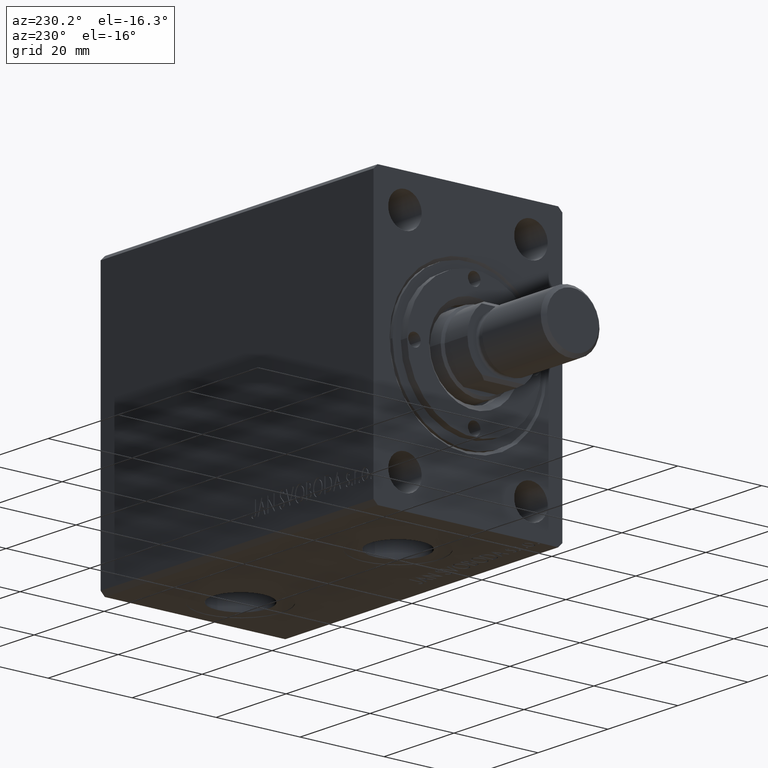
[diagram: clean part render]
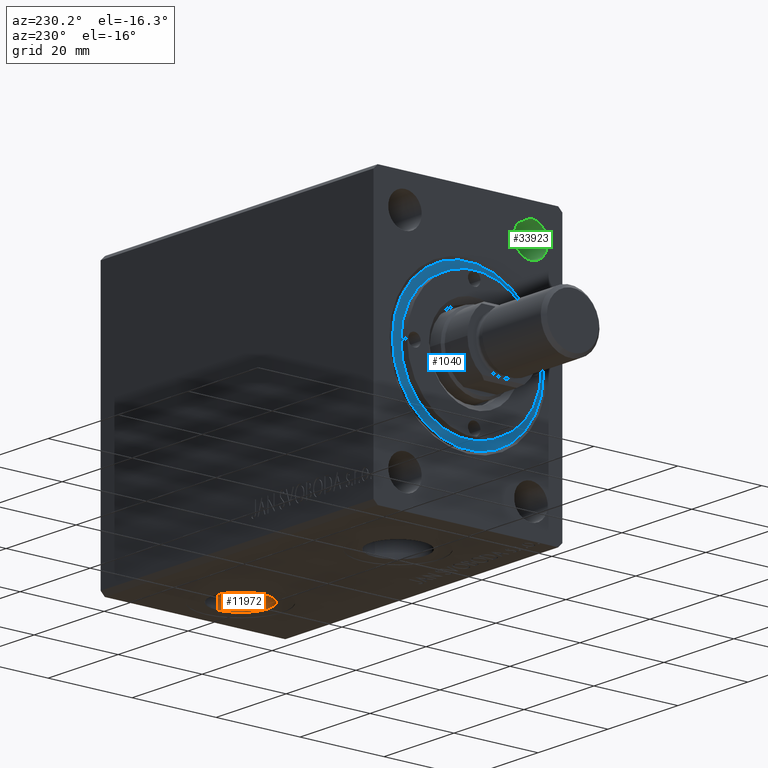
[diagram: same view with three faces highlighted in distinct colors, each labeled with its STEP entity id]
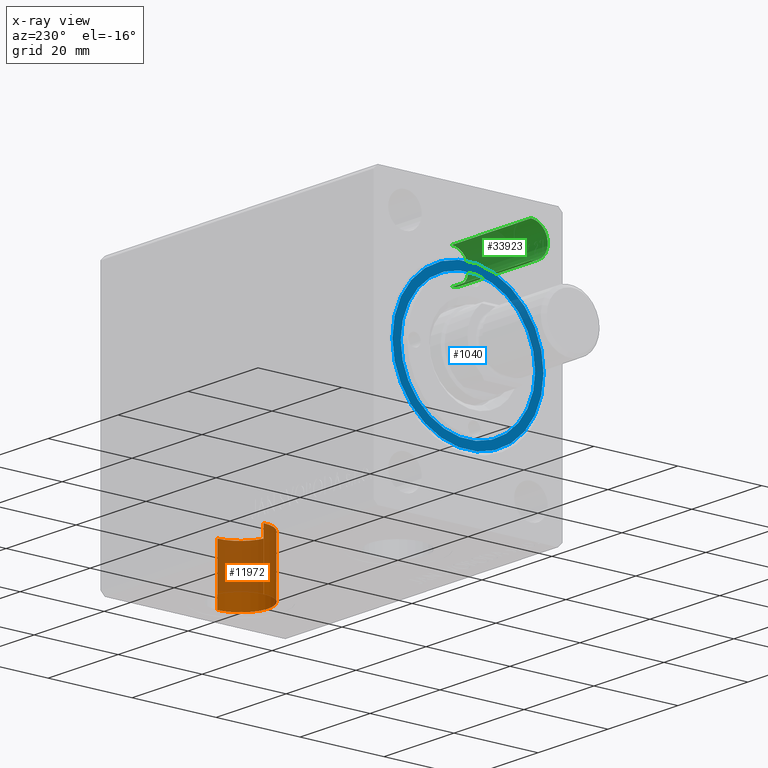
[diagram: x-ray of the same camera — body ghosted, the three highlighted faces saturated]
A machine part, auxiliary view with three faces highlighted in distinct colors.
The next image is the same camera in x-ray (body ghosted, the three faces saturated) — at least one of them is partly hidden behind the body in this view.
Their STEP definitions:

[orange] entity #11972 — the highlighted cylindrical surface (edge-blend (fillet) strip) has radius 6.58 mm, axis along (-0, -0, -1).
#3132 = DIRECTION ( 'NONE',  ( -1.000000000000000000, 0.000000000000000000, 0.000000000000000000 ) ) ;
#6210 = AXIS2_PLACEMENT_3D ( 'NONE', #23789, #6719, #3132 ) ;
#6719 = DIRECTION ( 'NONE',  ( 0.000000000000000000, 0.000000000000000000, -1.000000000000000000 ) ) ;
#7118 = ORIENTED_EDGE ( 'NONE', *, *, #13020, .F. ) ;
#8513 = CIRCLE ( 'NONE', #32853, 6.580000000000002736 ) ;
#8901 = VECTOR ( 'NONE', #19192, 1000.000000000000000 ) ;
#11668 = AXIS2_PLACEMENT_3D ( 'NONE', #40869, #26925, #40644 ) ;
#11972 = ADVANCED_FACE ( 'NONE', ( #44006 ), #13241, .F. ) ;
#12168 = CARTESIAN_POINT ( 'NONE',  ( 71.57999999999999829, -2.126334039427193546E-15, -32.39999999999999858 ) ) ;
#12591 = ORIENTED_EDGE ( 'NONE', *, *, #34863, .F. ) ;
#12693 = CARTESIAN_POINT ( 'NONE',  ( 71.57999999999999829, -2.126334039427193546E-15, -18.79999999999999716 ) ) ;
#13020 = EDGE_CURVE ( 'NONE', #34846, #21326, #14729, .T. ) ;
#13241 = CYLINDRICAL_SURFACE ( 'NONE', #11668, 6.580000000000002736 ) ;
#14729 = LINE ( 'NONE', #39428, #30934 ) ;
#15816 = DIRECTION ( 'NONE',  ( 0.000000000000000000, 0.000000000000000000, -1.000000000000000000 ) ) ;
#16220 = ORIENTED_EDGE ( 'NONE', *, *, #17683, .T. ) ;
#17683 = EDGE_CURVE ( 'NONE', #41756, #21326, #8513, .T. ) ;
#19192 = DIRECTION ( 'NONE',  ( -0.000000000000000000, -0.000000000000000000, -1.000000000000000000 ) ) ;
#21326 = VERTEX_POINT ( 'NONE', #21483 ) ;
#21483 = CARTESIAN_POINT ( 'NONE',  ( 58.42000000000000171, -2.932151633266152588E-15, -32.39999999999999858 ) ) ;
#22343 = LINE ( 'NONE', #12693, #8901 ) ;
#22351 = DIRECTION ( 'NONE',  ( -0.000000000000000000, -0.000000000000000000, -1.000000000000000000 ) ) ;
#23788 = EDGE_CURVE ( 'NONE', #40928, #41756, #22343, .T. ) ;
#23789 = CARTESIAN_POINT ( 'NONE',  ( 65.00000000000000000, -2.932151633266152588E-15, -18.79999999999999716 ) ) ;
#26921 = CARTESIAN_POINT ( 'NONE',  ( 58.42000000000000171, -2.932151633266152588E-15, -18.79999999999999716 ) ) ;
#26925 = DIRECTION ( 'NONE',  ( -0.000000000000000000, -0.000000000000000000, -1.000000000000000000 ) ) ;
#29281 = DIRECTION ( 'NONE',  ( -1.000000000000000000, 0.000000000000000000, 0.000000000000000000 ) ) ;
#29597 = EDGE_LOOP ( 'NONE', ( #12591, #39524, #16220, #7118 ) ) ;
#30078 = CARTESIAN_POINT ( 'NONE',  ( 71.57999999999999829, -2.126334039427193546E-15, -18.79999999999999716 ) ) ;
#30934 = VECTOR ( 'NONE', #22351, 1000.000000000000000 ) ;
#32853 = AXIS2_PLACEMENT_3D ( 'NONE', #42782, #15816, #29281 ) ;
#34846 = VERTEX_POINT ( 'NONE', #26921 ) ;
#34863 = EDGE_CURVE ( 'NONE', #40928, #34846, #36321, .T. ) ;
#36321 = CIRCLE ( 'NONE', #6210, 6.580000000000002736 ) ;
#39428 = CARTESIAN_POINT ( 'NONE',  ( 58.42000000000000171, -2.932151633266152588E-15, -18.79999999999999716 ) ) ;
#39524 = ORIENTED_EDGE ( 'NONE', *, *, #23788, .T. ) ;
#40644 = DIRECTION ( 'NONE',  ( -1.000000000000000000, 0.000000000000000000, 0.000000000000000000 ) ) ;
#40869 = CARTESIAN_POINT ( 'NONE',  ( 65.00000000000000000, -2.932151633266152588E-15, -18.79999999999999716 ) ) ;
#40928 = VERTEX_POINT ( 'NONE', #30078 ) ;
#41756 = VERTEX_POINT ( 'NONE', #12168 ) ;
#42782 = CARTESIAN_POINT ( 'NONE',  ( 65.00000000000000000, -2.932151633266152588E-15, -32.39999999999999858 ) ) ;
#44006 = FACE_OUTER_BOUND ( 'NONE', #29597, .T. ) ;

[blue] entity #1040 — the highlighted planar face has unit normal (-1, 0, 0).
#276 = CIRCLE ( 'NONE', #28242, 18.00000000000000000 ) ;
#468 = ORIENTED_EDGE ( 'NONE', *, *, #34655, .T. ) ;
#995 = CARTESIAN_POINT ( 'NONE',  ( 0.000000000000000000, 0.000000000000000000, 10.00000000000000000 ) ) ;
#1040 = ADVANCED_FACE ( 'NONE', ( #41827, #34639 ), #31484, .T. ) ;
#1641 = EDGE_LOOP ( 'NONE', ( #29463, #23432 ) ) ;
#7243 = VERTEX_POINT ( 'NONE', #30055 ) ;
#7927 = DIRECTION ( 'NONE',  ( 1.000000000000000000, 0.000000000000000000, -0.000000000000000000 ) ) ;
#8173 = DIRECTION ( 'NONE',  ( 0.000000000000000000, 0.000000000000000000, 1.000000000000000000 ) ) ;
#11963 = CIRCLE ( 'NONE', #28437, 18.00000000000000000 ) ;
#13800 = ORIENTED_EDGE ( 'NONE', *, *, #23670, .T. ) ;
#14648 = DIRECTION ( 'NONE',  ( 0.000000000000000000, 0.000000000000000000, 1.000000000000000000 ) ) ;
#15788 = CARTESIAN_POINT ( 'NONE',  ( 16.00000000000000000, 1.959434878635765131E-15, 10.00000000000000000 ) ) ;
#16881 = DIRECTION ( 'NONE',  ( 1.000000000000000000, 0.000000000000000000, 0.000000000000000000 ) ) ;
#18027 = CARTESIAN_POINT ( 'NONE',  ( 0.000000000000000000, 0.000000000000000000, 10.00000000000000000 ) ) ;
#18533 = DIRECTION ( 'NONE',  ( 1.000000000000000000, 0.000000000000000000, 0.000000000000000000 ) ) ;
#20251 = EDGE_LOOP ( 'NONE', ( #13800, #468 ) ) ;
#20726 = DIRECTION ( 'NONE',  ( 1.000000000000000000, 0.000000000000000000, 0.000000000000000000 ) ) ;
#20864 = VERTEX_POINT ( 'NONE', #39987 ) ;
#21074 = AXIS2_PLACEMENT_3D ( 'NONE', #31038, #37571, #20726 ) ;
#22038 = CIRCLE ( 'NONE', #36389, 16.00000000000000000 ) ;
#22594 = EDGE_CURVE ( 'NONE', #7243, #36726, #25181, .T. ) ;
#23432 = ORIENTED_EDGE ( 'NONE', *, *, #36587, .F. ) ;
#23670 = EDGE_CURVE ( 'NONE', #30448, #20864, #276, .T. ) ;
#25181 = CIRCLE ( 'NONE', #21074, 16.00000000000000000 ) ;
#25263 = CARTESIAN_POINT ( 'NONE',  ( 0.000000000000000000, 0.000000000000000000, 10.00000000000000000 ) ) ;
#27417 = DIRECTION ( 'NONE',  ( 0.000000000000000000, 0.000000000000000000, 1.000000000000000000 ) ) ;
#27769 = CARTESIAN_POINT ( 'NONE',  ( -18.00000000000000000, 0.000000000000000000, 10.00000000000000000 ) ) ;
#28242 = AXIS2_PLACEMENT_3D ( 'NONE', #25263, #31774, #18533 ) ;
#28373 = DIRECTION ( 'NONE',  ( 1.000000000000000000, 0.000000000000000000, 0.000000000000000000 ) ) ;
#28437 = AXIS2_PLACEMENT_3D ( 'NONE', #43843, #27417, #16881 ) ;
#29463 = ORIENTED_EDGE ( 'NONE', *, *, #22594, .F. ) ;
#30055 = CARTESIAN_POINT ( 'NONE',  ( -16.00000000000000000, 0.000000000000000000, 10.00000000000000000 ) ) ;
#30448 = VERTEX_POINT ( 'NONE', #27769 ) ;
#31038 = CARTESIAN_POINT ( 'NONE',  ( 0.000000000000000000, 0.000000000000000000, 10.00000000000000000 ) ) ;
#31484 = PLANE ( 'NONE',  #31540 ) ;
#31540 = AXIS2_PLACEMENT_3D ( 'NONE', #18027, #14648, #7927 ) ;
#31774 = DIRECTION ( 'NONE',  ( 0.000000000000000000, 0.000000000000000000, 1.000000000000000000 ) ) ;
#34639 = FACE_OUTER_BOUND ( 'NONE', #20251, .T. ) ;
#34655 = EDGE_CURVE ( 'NONE', #20864, #30448, #11963, .T. ) ;
#36389 = AXIS2_PLACEMENT_3D ( 'NONE', #995, #8173, #28373 ) ;
#36587 = EDGE_CURVE ( 'NONE', #36726, #7243, #22038, .T. ) ;
#36726 = VERTEX_POINT ( 'NONE', #15788 ) ;
#37571 = DIRECTION ( 'NONE',  ( 0.000000000000000000, 0.000000000000000000, 1.000000000000000000 ) ) ;
#39987 = CARTESIAN_POINT ( 'NONE',  ( 18.00000000000000000, 2.204364238465235428E-15, 10.00000000000000000 ) ) ;
#41827 = FACE_BOUND ( 'NONE', #1641, .T. ) ;
#43843 = CARTESIAN_POINT ( 'NONE',  ( 0.000000000000000000, 0.000000000000000000, 10.00000000000000000 ) ) ;

[green] entity #33923 — the highlighted cylindrical surface (edge-blend (fillet) strip) has radius 4 mm, axis along (-1, -0, -0).
#1146 = CYLINDRICAL_SURFACE ( 'NONE', #4036, 4.000000000000000000 ) ;
#3524 = EDGE_CURVE ( 'NONE', #25661, #25407, #39037, .T. ) ;
#4036 = AXIS2_PLACEMENT_3D ( 'NONE', #24497, #28520, #7438 ) ;
#5519 = VECTOR ( 'NONE', #28409, 1000.000000000000000 ) ;
#7438 = DIRECTION ( 'NONE',  ( 0.000000000000000000, 0.000000000000000000, 1.000000000000000000 ) ) ;
#9769 = AXIS2_PLACEMENT_3D ( 'NONE', #19300, #42466, #32990 ) ;
#11751 = CARTESIAN_POINT ( 'NONE',  ( 3.061616997868395467E-16, -14.99999999999999645, 24.99999999999999645 ) ) ;
#12453 = EDGE_CURVE ( 'NONE', #13798, #25661, #40714, .T. ) ;
#13035 = VECTOR ( 'NONE', #33946, 1000.000000000000000 ) ;
#13798 = VERTEX_POINT ( 'NONE', #35435 ) ;
#14879 = DIRECTION ( 'NONE',  ( -1.000000000000000000, -0.000000000000000000, -0.000000000000000000 ) ) ;
#14905 = ORIENTED_EDGE ( 'NONE', *, *, #3524, .T. ) ;
#16071 = VERTEX_POINT ( 'NONE', #32346 ) ;
#16332 = CARTESIAN_POINT ( 'NONE',  ( 3.061616997868395467E-16, -14.99999999999999645, 20.99999999999999645 ) ) ;
#18095 = CARTESIAN_POINT ( 'NONE',  ( 0.000000000000000000, -14.99999999999999645, 28.99999999999999645 ) ) ;
#19300 = CARTESIAN_POINT ( 'NONE',  ( 22.67000000000000171, -14.99999999999999645, 24.99999999999999645 ) ) ;
#21068 = EDGE_LOOP ( 'NONE', ( #40404, #21975, #14905, #24435 ) ) ;
#21975 = ORIENTED_EDGE ( 'NONE', *, *, #12453, .T. ) ;
#24435 = ORIENTED_EDGE ( 'NONE', *, *, #43997, .F. ) ;
#24497 = CARTESIAN_POINT ( 'NONE',  ( 0.000000000000000000, -14.99999999999999645, 24.99999999999999645 ) ) ;
#25407 = VERTEX_POINT ( 'NONE', #37263 ) ;
#25661 = VERTEX_POINT ( 'NONE', #16332 ) ;
#26832 = AXIS2_PLACEMENT_3D ( 'NONE', #11751, #14879, #42947 ) ;
#26968 = CIRCLE ( 'NONE', #9769, 3.999999999999996447 ) ;
#28409 = DIRECTION ( 'NONE',  ( -1.000000000000000000, -0.000000000000000000, -0.000000000000000000 ) ) ;
#28520 = DIRECTION ( 'NONE',  ( -1.000000000000000000, -0.000000000000000000, -0.000000000000000000 ) ) ;
#31105 = LINE ( 'NONE', #18095, #5519 ) ;
#32346 = CARTESIAN_POINT ( 'NONE',  ( 22.67000000000000171, -14.99999999999999645, 28.99999999999999289 ) ) ;
#32990 = DIRECTION ( 'NONE',  ( 0.000000000000000000, 0.000000000000000000, 1.000000000000000000 ) ) ;
#33923 = ADVANCED_FACE ( 'NONE', ( #38877 ), #1146, .F. ) ;
#33946 = DIRECTION ( 'NONE',  ( -1.000000000000000000, -0.000000000000000000, -0.000000000000000000 ) ) ;
#33983 = EDGE_CURVE ( 'NONE', #13798, #16071, #26968, .T. ) ;
#35435 = CARTESIAN_POINT ( 'NONE',  ( 22.67000000000000171, -14.99999999999999645, 21.00000000000000000 ) ) ;
#37110 = CARTESIAN_POINT ( 'NONE',  ( 0.000000000000000000, -14.99999999999999645, 20.99999999999999645 ) ) ;
#37263 = CARTESIAN_POINT ( 'NONE',  ( 3.061616997868395467E-16, -14.99999999999999645, 28.99999999999999645 ) ) ;
#38877 = FACE_OUTER_BOUND ( 'NONE', #21068, .T. ) ;
#39037 = CIRCLE ( 'NONE', #26832, 4.000000000000000000 ) ;
#40404 = ORIENTED_EDGE ( 'NONE', *, *, #33983, .F. ) ;
#40714 = LINE ( 'NONE', #37110, #13035 ) ;
#42466 = DIRECTION ( 'NONE',  ( -1.000000000000000000, -0.000000000000000000, -0.000000000000000000 ) ) ;
#42947 = DIRECTION ( 'NONE',  ( 0.000000000000000000, 0.000000000000000000, 1.000000000000000000 ) ) ;
#43997 = EDGE_CURVE ( 'NONE', #16071, #25407, #31105, .T. ) ;